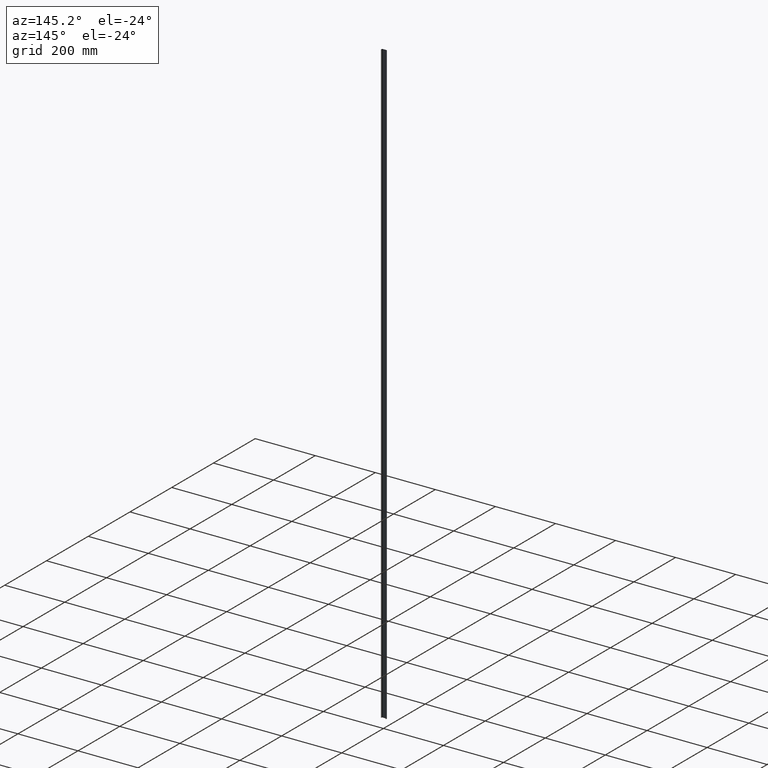
[diagram: clean part render]
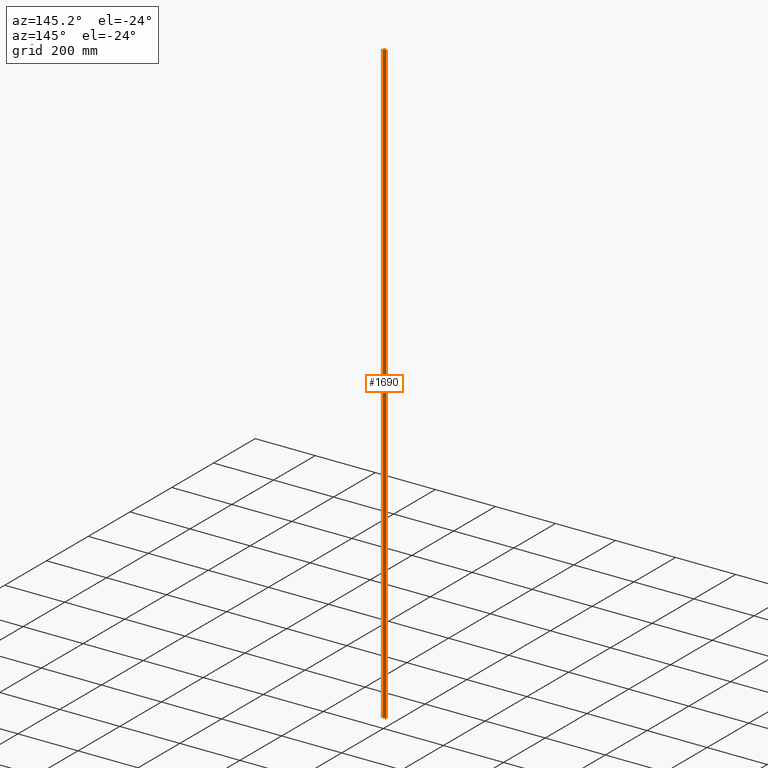
[diagram: same view with one face highlighted and labeled with its STEP entity id]
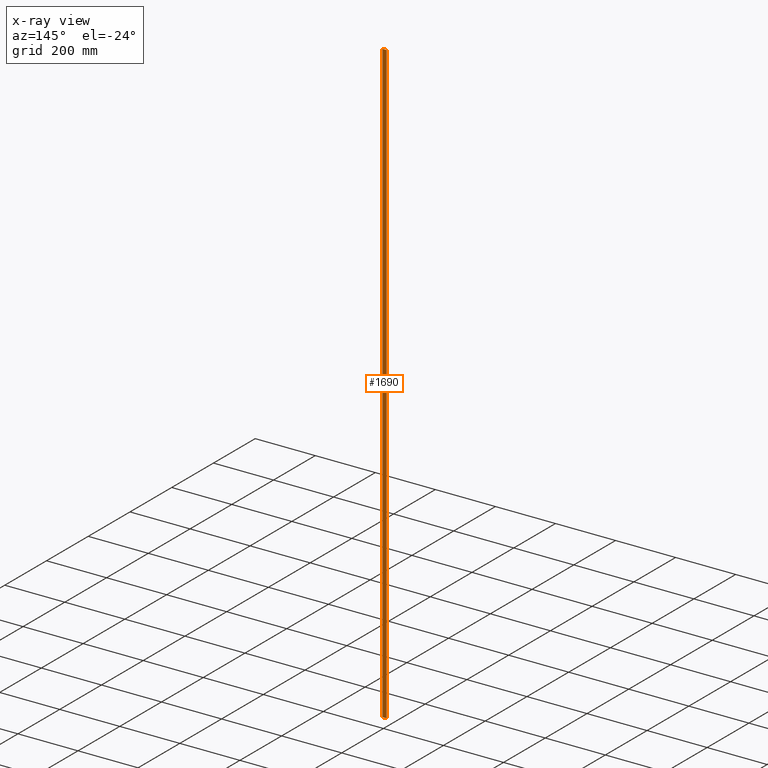
[diagram: x-ray of the same camera — body ghosted, the highlighted face saturated]
A machine part, auxiliary view. The second image highlights one B-rep face of the part: STEP entity #1690.
The next image is the same camera in x-ray: the body ghosted, the highlighted face saturated — about 0% of this face is hidden behind the body in this view.
In plain terms, the highlighted planar face has unit normal (0, -1, 0).
Its self-contained STEP definition (entity closure, byte-faithful):
#146 = CARTESIAN_POINT ( 'NONE',  ( -6.550000000000000711, 6.000000000000000000, -1000.000000000000000 ) ) ;
#757 = LINE ( 'NONE', #7160, #7272 ) ;
#1043 = AXIS2_PLACEMENT_3D ( 'NONE', #8271, #2797, #16377 ) ;
#1443 = DIRECTION ( 'NONE',  ( -1.000000000000000000, -0.000000000000000000, -0.000000000000000000 ) ) ;
#1690 = ADVANCED_FACE ( 'NONE', ( #8488 ), #16313, .F. ) ;
#2211 = ORIENTED_EDGE ( 'NONE', *, *, #8502, .F. ) ;
#2712 = VERTEX_POINT ( 'NONE', #5283 ) ;
#2797 = DIRECTION ( 'NONE',  ( 0.000000000000000000, -1.000000000000000000, 0.000000000000000000 ) ) ;
#3514 = VERTEX_POINT ( 'NONE', #146 ) ;
#4115 = EDGE_LOOP ( 'NONE', ( #4149, #2211, #7731, #5614 ) ) ;
#4149 = ORIENTED_EDGE ( 'NONE', *, *, #5680, .T. ) ;
#4964 = CARTESIAN_POINT ( 'NONE',  ( 6.550000000000000711, 6.000000000000000000, -1000.000000000000000 ) ) ;
#5232 = VERTEX_POINT ( 'NONE', #4964 ) ;
#5283 = CARTESIAN_POINT ( 'NONE',  ( 6.550000000000000711, 6.000000000000000000, 1000.000000000000000 ) ) ;
#5309 = CARTESIAN_POINT ( 'NONE',  ( -6.550000000000000711, 6.000000000000000000, 1000.000000000000000 ) ) ;
#5506 = CARTESIAN_POINT ( 'NONE',  ( -6.550000000000000711, 6.000000000000000000, 1000.000000000000000 ) ) ;
#5614 = ORIENTED_EDGE ( 'NONE', *, *, #12412, .T. ) ;
#5680 = EDGE_CURVE ( 'NONE', #5232, #3514, #757, .T. ) ;
#5685 = VECTOR ( 'NONE', #8862, 1000.000000000000000 ) ;
#7044 = DIRECTION ( 'NONE',  ( -1.000000000000000000, -0.000000000000000000, -0.000000000000000000 ) ) ;
#7160 = CARTESIAN_POINT ( 'NONE',  ( -6.550000000000000711, 6.000000000000000000, -1000.000000000000000 ) ) ;
#7272 = VECTOR ( 'NONE', #7044, 1000.000000000000000 ) ;
#7613 = CARTESIAN_POINT ( 'NONE',  ( 6.550000000000000711, 6.000000000000000000, 1000.000000000000000 ) ) ;
#7731 = ORIENTED_EDGE ( 'NONE', *, *, #7809, .F. ) ;
#7809 = EDGE_CURVE ( 'NONE', #2712, #13631, #16069, .T. ) ;
#8271 = CARTESIAN_POINT ( 'NONE',  ( -6.550000000000000711, 6.000000000000000000, 1000.000000000000000 ) ) ;
#8444 = CARTESIAN_POINT ( 'NONE',  ( -6.550000000000000711, 6.000000000000000000, 1000.000000000000000 ) ) ;
#8488 = FACE_OUTER_BOUND ( 'NONE', #4115, .T. ) ;
#8502 = EDGE_CURVE ( 'NONE', #13631, #3514, #10622, .T. ) ;
#8862 = DIRECTION ( 'NONE',  ( -0.000000000000000000, -0.000000000000000000, -1.000000000000000000 ) ) ;
#9274 = LINE ( 'NONE', #7613, #5685 ) ;
#10622 = LINE ( 'NONE', #5309, #11882 ) ;
#11882 = VECTOR ( 'NONE', #13681, 1000.000000000000000 ) ;
#12412 = EDGE_CURVE ( 'NONE', #2712, #5232, #9274, .T. ) ;
#13631 = VERTEX_POINT ( 'NONE', #8444 ) ;
#13681 = DIRECTION ( 'NONE',  ( -0.000000000000000000, -0.000000000000000000, -1.000000000000000000 ) ) ;
#14805 = VECTOR ( 'NONE', #1443, 1000.000000000000000 ) ;
#16069 = LINE ( 'NONE', #5506, #14805 ) ;
#16313 = PLANE ( 'NONE',  #1043 ) ;
#16377 = DIRECTION ( 'NONE',  ( 0.000000000000000000, -0.000000000000000000, -1.000000000000000000 ) ) ;